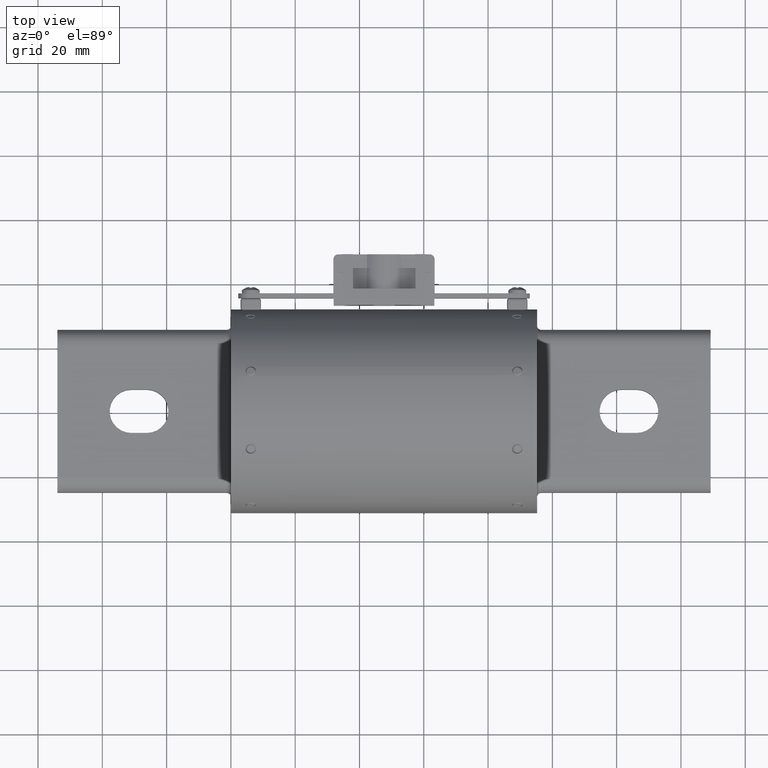
[diagram: clean part render]
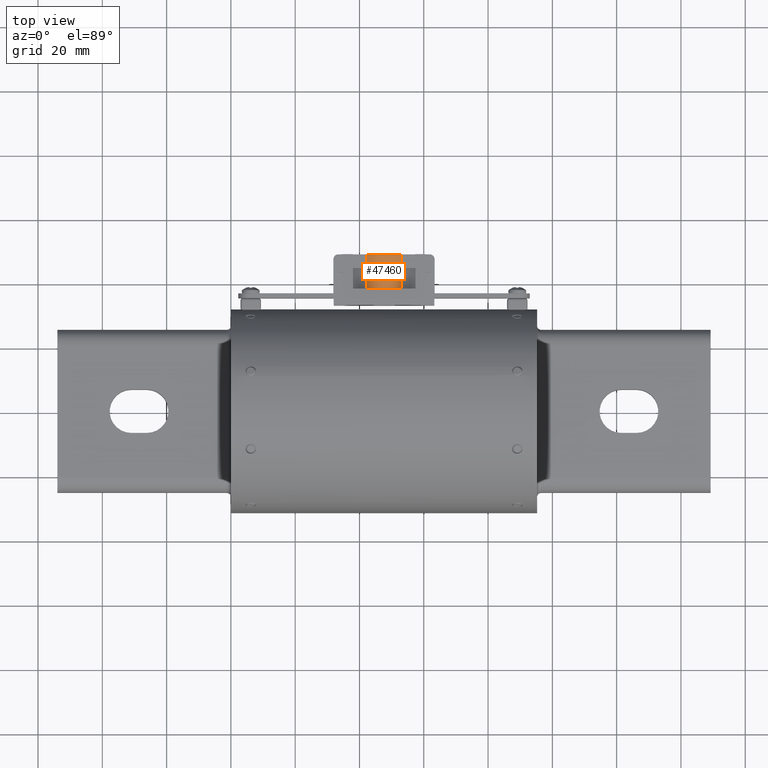
[diagram: same view with one face highlighted and labeled with its STEP entity id]
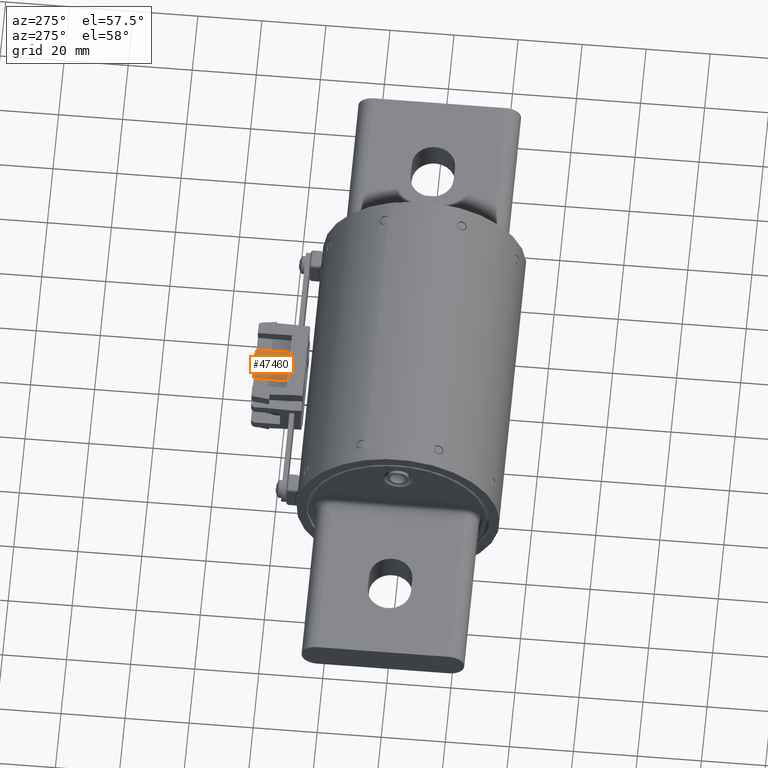
[diagram: same view with one face highlighted and labeled with its STEP entity id]
A machine part, top view. The second image highlights one B-rep face of the part: STEP entity #47460.
A second angle (auxiliary view) of the same face is appended — the face is thin or edge-on in the first view.
In plain terms, the highlighted cylindrical surface (edge-blend (fillet) strip) has radius 7.9079 mm, axis along (0, -1, 0).
Its self-contained STEP definition (entity closure, byte-faithful):
#1959 = AXIS2_PLACEMENT_3D ( 'NONE', #20202, #96030, #31073 ) ;
#8038 = CIRCLE ( 'NONE', #100954, 0.3113347155278811700 ) ;
#9476 = VERTEX_POINT ( 'NONE', #14994 ) ;
#9569 = CARTESIAN_POINT ( 'NONE',  ( 2.082626364664102800, 1.920773281310192800, 0.2319926675332559500 ) ) ;
#11314 = ORIENTED_EDGE ( 'NONE', *, *, #125140, .F. ) ;
#11839 = CARTESIAN_POINT ( 'NONE',  ( 1.667373635335897400, 1.920773281310192800, 0.2319926675332559500 ) ) ;
#14994 = CARTESIAN_POINT ( 'NONE',  ( 1.667373635335897400, 1.500773281310192800, 0.2319926675332559500 ) ) ;
#15633 = VERTEX_POINT ( 'NONE', #116470 ) ;
#20011 = DIRECTION ( 'NONE',  ( 0.0000000000000000000, 0.0000000000000000000, -1.000000000000000000 ) ) ;
#20073 = CYLINDRICAL_SURFACE ( 'NONE', #79330, 0.3113347155278811700 ) ;
#20202 = CARTESIAN_POINT ( 'NONE',  ( 1.875000000000000000, 1.500773281310192800, -8.537024980200822600E-018 ) ) ;
#27003 = DIRECTION ( 'NONE',  ( 0.0000000000000000000, -1.000000000000000000, 0.0000000000000000000 ) ) ;
#31073 = DIRECTION ( 'NONE',  ( 0.0000000000000000000, 0.0000000000000000000, -1.000000000000000000 ) ) ;
#43024 = EDGE_LOOP ( 'NONE', ( #81642, #44247, #11314, #62587 ) ) ;
#44247 = ORIENTED_EDGE ( 'NONE', *, *, #71822, .F. ) ;
#47460 = ADVANCED_FACE ( 'NONE', ( #91365 ), #20073, .T. ) ;
#52983 = CARTESIAN_POINT ( 'NONE',  ( 2.082626364664102800, 2.690263513375061400, 0.2319926675332559500 ) ) ;
#57520 = VERTEX_POINT ( 'NONE', #11839 ) ;
#61163 = VERTEX_POINT ( 'NONE', #9569 ) ;
#61580 = DIRECTION ( 'NONE',  ( -0.0000000000000000000, 1.000000000000000000, 5.012027464914204000E-017 ) ) ;
#62587 = ORIENTED_EDGE ( 'NONE', *, *, #72128, .F. ) ;
#63899 = DIRECTION ( 'NONE',  ( 0.0000000000000000000, -1.000000000000000000, 0.0000000000000000000 ) ) ;
#66603 = EDGE_CURVE ( 'NONE', #57520, #9476, #71897, .T. ) ;
#67564 = CIRCLE ( 'NONE', #1959, 0.3113347155278811700 ) ;
#71822 = EDGE_CURVE ( 'NONE', #15633, #9476, #67564, .T. ) ;
#71897 = LINE ( 'NONE', #134995, #116011 ) ;
#72128 = EDGE_CURVE ( 'NONE', #57520, #61163, #8038, .T. ) ;
#79330 = AXIS2_PLACEMENT_3D ( 'NONE', #116787, #106318, #20011 ) ;
#80295 = VECTOR ( 'NONE', #63899, 39.37007874015748100 ) ;
#81642 = ORIENTED_EDGE ( 'NONE', *, *, #66603, .T. ) ;
#91365 = FACE_OUTER_BOUND ( 'NONE', #43024, .T. ) ;
#96030 = DIRECTION ( 'NONE',  ( -0.0000000000000000000, -1.000000000000000000, -0.0000000000000000000 ) ) ;
#100954 = AXIS2_PLACEMENT_3D ( 'NONE', #126561, #61580, #137367 ) ;
#106318 = DIRECTION ( 'NONE',  ( 0.0000000000000000000, -1.000000000000000000, 0.0000000000000000000 ) ) ;
#116011 = VECTOR ( 'NONE', #27003, 39.37007874015748100 ) ;
#116470 = CARTESIAN_POINT ( 'NONE',  ( 2.082626364664102800, 1.500773281310192800, 0.2319926675332559500 ) ) ;
#116787 = CARTESIAN_POINT ( 'NONE',  ( 1.875000000000000000, 2.690263513375061400, -8.537024980200822600E-018 ) ) ;
#125140 = EDGE_CURVE ( 'NONE', #61163, #15633, #137948, .T. ) ;
#126561 = CARTESIAN_POINT ( 'NONE',  ( 1.875000000000000000, 1.920773281310192800, -8.537024980200822600E-018 ) ) ;
#134995 = CARTESIAN_POINT ( 'NONE',  ( 1.667373635335897400, 2.690263513375061400, 0.2319926675332559500 ) ) ;
#137367 = DIRECTION ( 'NONE',  ( 0.0000000000000000000, 0.0000000000000000000, -1.000000000000000000 ) ) ;
#137948 = LINE ( 'NONE', #52983, #80295 ) ;